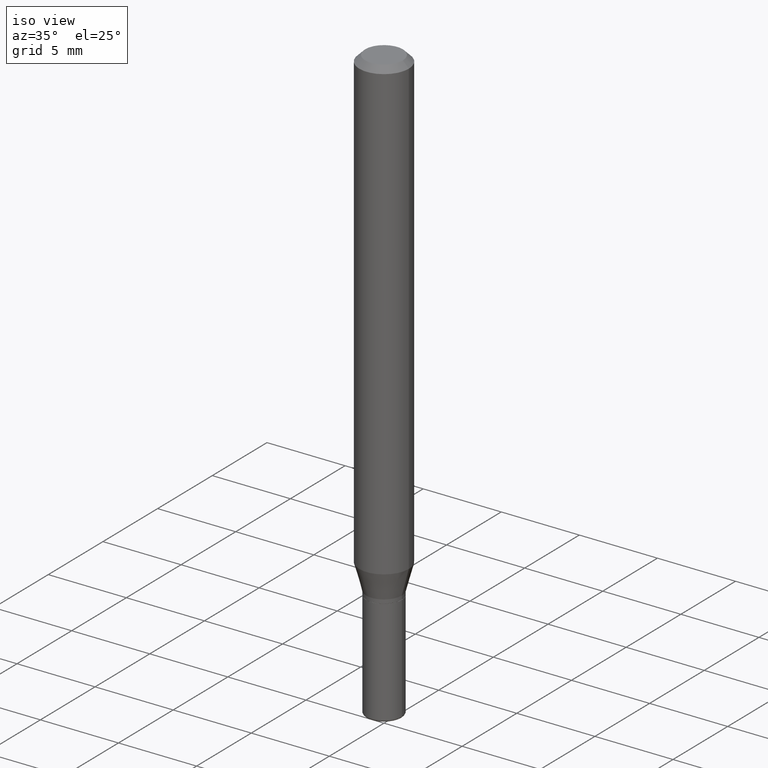
[diagram: clean part render]
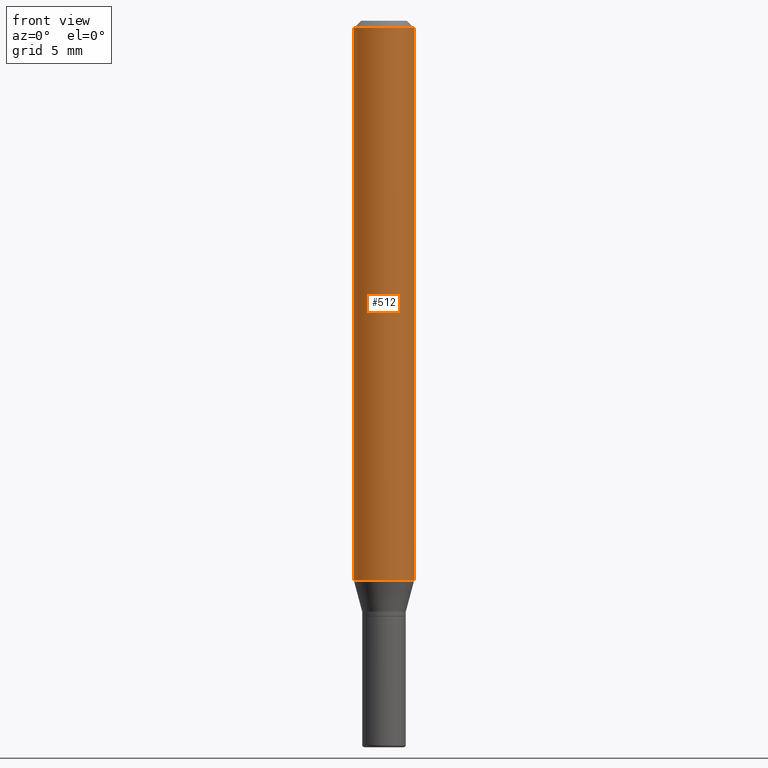
[diagram: tour spotlight — one face highlighted and labeled with its STEP entity id]
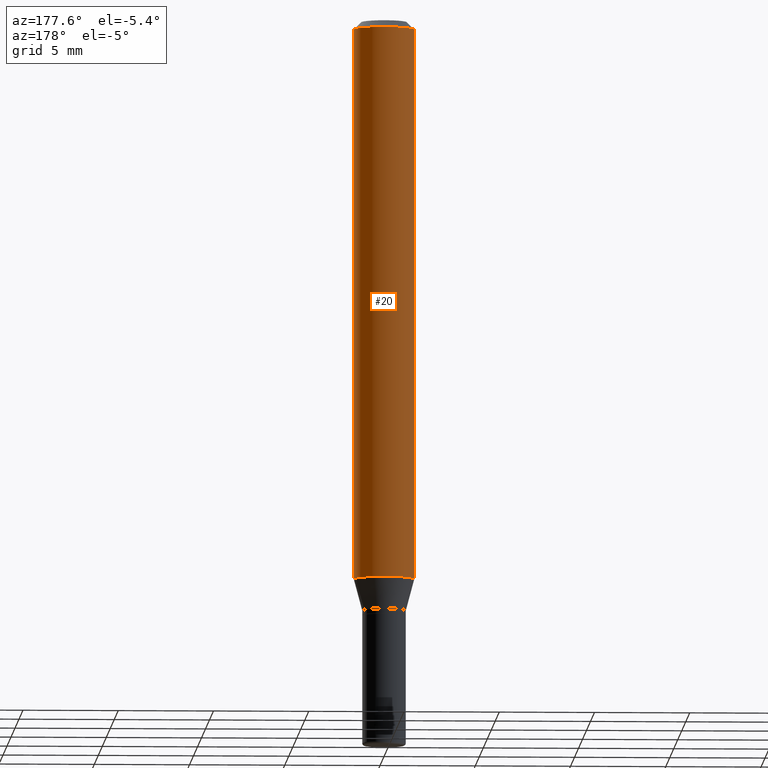
[diagram: tour spotlight — one face highlighted and labeled with its STEP entity id]
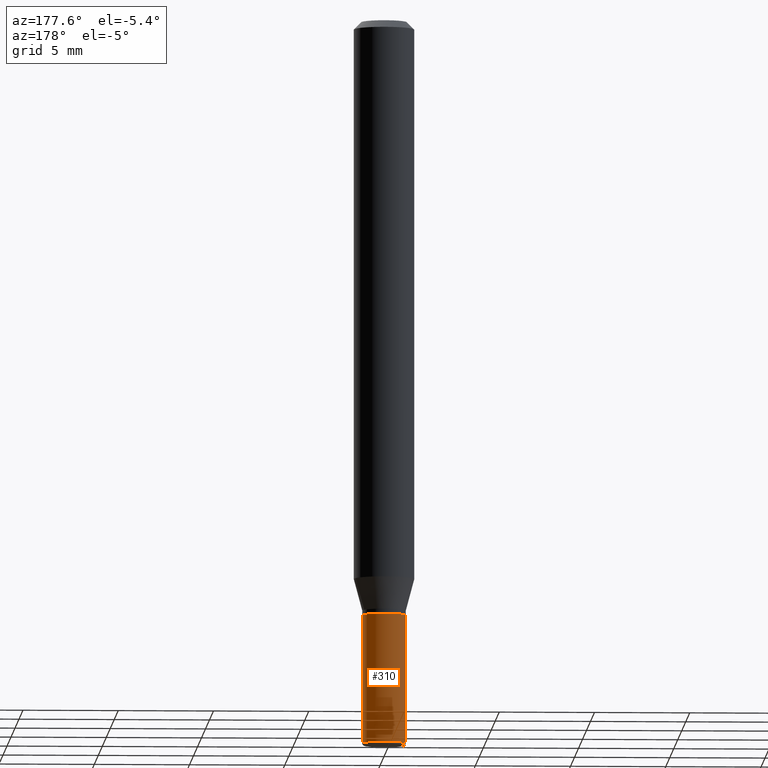
[diagram: tour spotlight — one face highlighted and labeled with its STEP entity id]
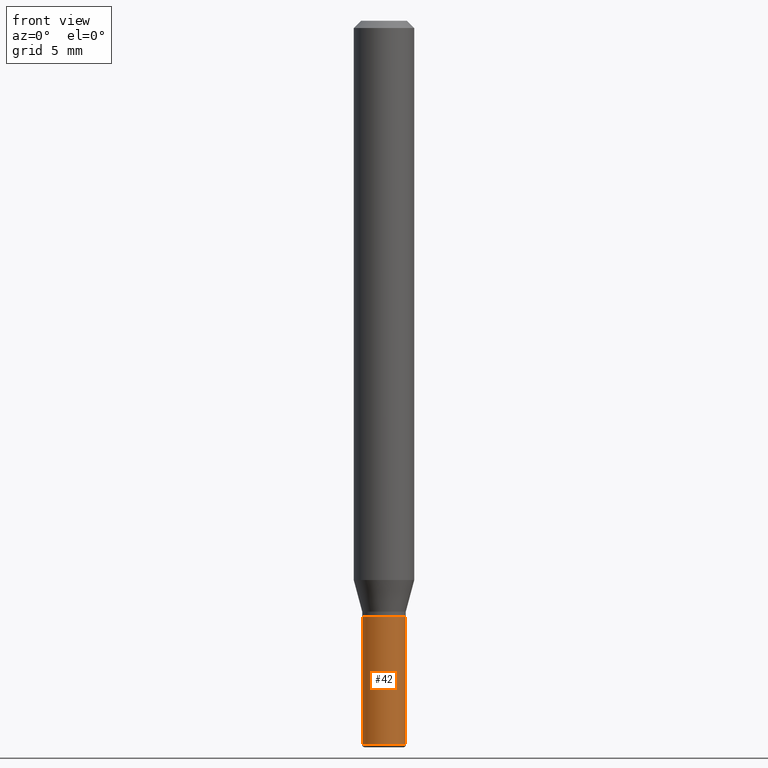
[diagram: tour spotlight — one face highlighted and labeled with its STEP entity id]
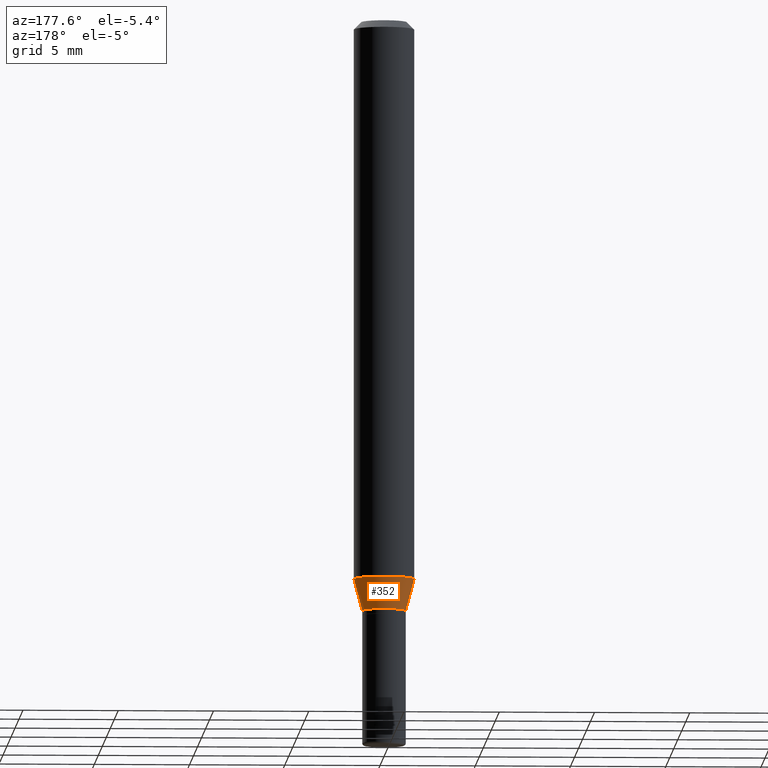
[diagram: tour spotlight — one face highlighted and labeled with its STEP entity id]
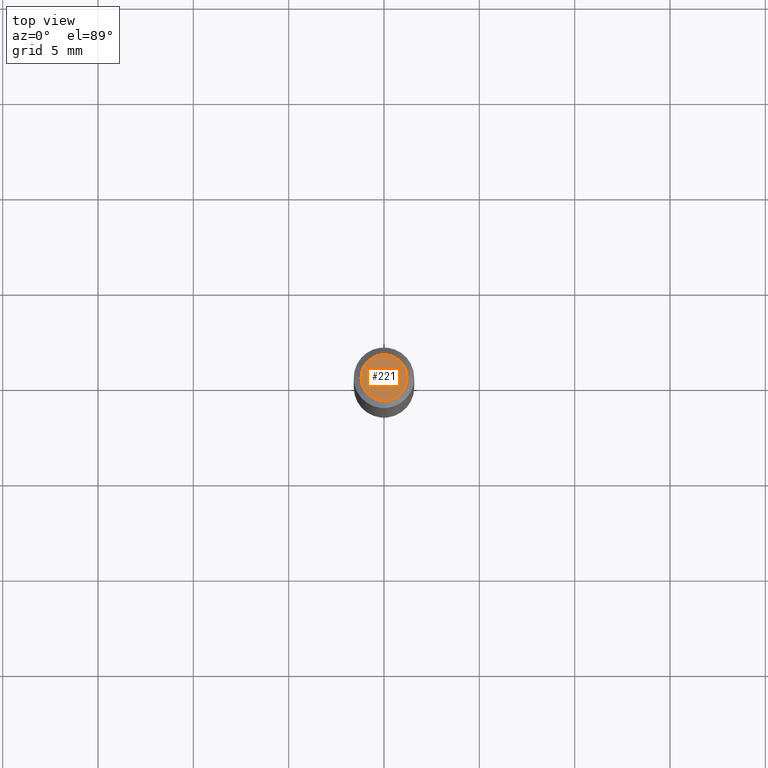
[diagram: tour spotlight — one face highlighted and labeled with its STEP entity id]
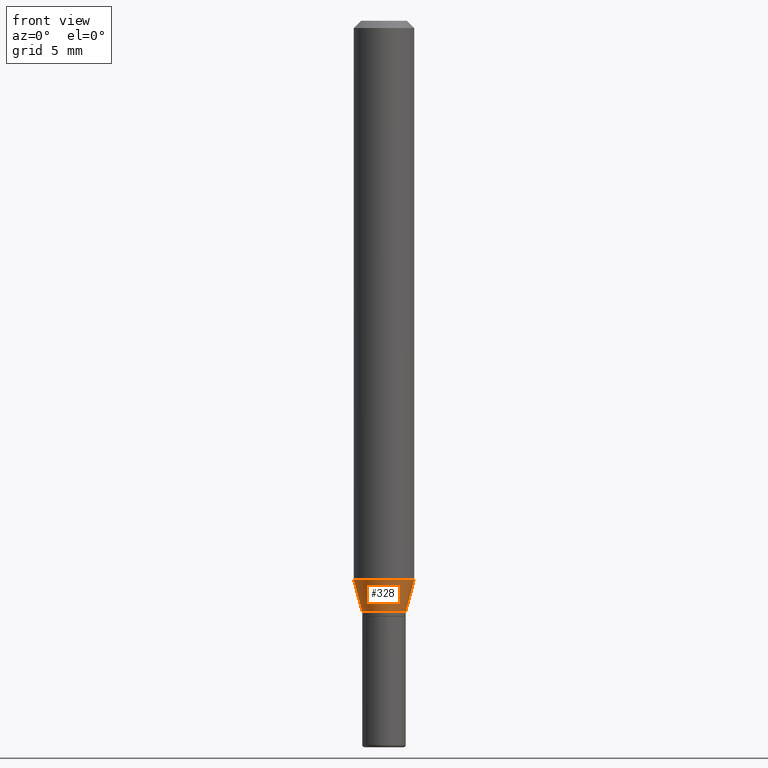
[diagram: tour spotlight — one face highlighted and labeled with its STEP entity id]
A machine part: a face-by-face anatomy tour. The part has 18 B-rep faces; the first image is the clean iso view, then the 7 largest visible faces are spotlighted one at a time (largest first), each with its STEP entity span.

Face 1 — front view, entity #512. In plain terms, the highlighted cylindrical surface (edge-blend (fillet) strip) has radius 1.5875 mm, axis along (-0, 0, 1).
Definition (entity closure, byte-faithful):
#5 = CARTESIAN_POINT ( 'NONE',  ( 0.06250000000000000000, -4.364351673553916694E-16, 3.047610484872459871E-30 ) ) ;
#18 = EDGE_CURVE ( 'NONE', #327, #83, #96, .T. ) ;
#19 = DIRECTION ( 'NONE',  ( 1.000000000000000000, -6.982962677686262766E-15, 0.000000000000000000 ) ) ;
#24 = CARTESIAN_POINT ( 'NONE',  ( 2.823756201468229950E-29, -4.031575482759414101E-15, -1.154689110867544111 ) ) ;
#44 = CARTESIAN_POINT ( 'NONE',  ( 0.06250000000000000000, -4.468010650114805770E-15, -1.154689110867544111 ) ) ;
#49 = AXIS2_PLACEMENT_3D ( 'NONE', #486, #342, #490 ) ;
#81 = VERTEX_POINT ( 'NONE', #324 ) ;
#83 = VERTEX_POINT ( 'NONE', #128 ) ;
#93 = DIRECTION ( 'NONE',  ( 1.000000000000000000, -6.982962677686266711E-15, 0.000000000000000000 ) ) ;
#96 = LINE ( 'NONE', #5, #188 ) ;
#101 = CIRCLE ( 'NONE', #387, 0.06250000000000000000 ) ;
#102 = AXIS2_PLACEMENT_3D ( 'NONE', #454, #442, #93 ) ;
#114 = VERTEX_POINT ( 'NONE', #140 ) ;
#125 = EDGE_CURVE ( 'NONE', #81, #327, #101, .T. ) ;
#128 = CARTESIAN_POINT ( 'NONE',  ( 0.06250000000000000000, -4.888073874380378612E-16, -0.01499999999999970281 ) ) ;
#140 = CARTESIAN_POINT ( 'NONE',  ( -0.06250000000000000000, -1.597884641570967382E-15, -0.01499999999999970281 ) ) ;
#149 = DIRECTION ( 'NONE',  ( -2.445468806185136597E-29, 3.491481338843145583E-15, 1.000000000000000000 ) ) ;
#173 = ORIENTED_EDGE ( 'NONE', *, *, #471, .F. ) ;
#181 = ORIENTED_EDGE ( 'NONE', *, *, #18, .T. ) ;
#184 = VECTOR ( 'NONE', #316, 39.37007874015748143 ) ;
#188 = VECTOR ( 'NONE', #489, 39.37007874015748143 ) ;
#208 = ORIENTED_EDGE ( 'NONE', *, *, #125, .T. ) ;
#263 = EDGE_CURVE ( 'NONE', #81, #114, #350, .T. ) ;
#316 = DIRECTION ( 'NONE',  ( -2.445468806185136877E-29, 3.491481338843145188E-15, 1.000000000000000000 ) ) ;
#324 = CARTESIAN_POINT ( 'NONE',  ( -0.06250000000000000000, -3.587486272909351485E-15, -1.154689110867544111 ) ) ;
#327 = VERTEX_POINT ( 'NONE', #44 ) ;
#329 = CIRCLE ( 'NONE', #102, 0.06250000000000000000 ) ;
#342 = DIRECTION ( 'NONE',  ( -2.445468806185136597E-29, 3.491481338843145583E-15, 1.000000000000000000 ) ) ;
#350 = LINE ( 'NONE', #414, #184 ) ;
#387 = AXIS2_PLACEMENT_3D ( 'NONE', #24, #149, #19 ) ;
#405 = CYLINDRICAL_SURFACE ( 'NONE', #49, 0.06250000000000000000 ) ;
#414 = CARTESIAN_POINT ( 'NONE',  ( -0.06250000000000000000, 4.440892098500626162E-16, -3.074334431409316114E-30 ) ) ;
#442 = DIRECTION ( 'NONE',  ( -2.445468806185136597E-29, 3.491481338843145583E-15, 1.000000000000000000 ) ) ;
#454 = CARTESIAN_POINT ( 'NONE',  ( 3.668203209277632395E-31, -5.237222008264614861E-17, -0.01499999999999970281 ) ) ;
#460 = ORIENTED_EDGE ( 'NONE', *, *, #263, .F. ) ;
#471 = EDGE_CURVE ( 'NONE', #114, #83, #329, .T. ) ;
#481 = EDGE_LOOP ( 'NONE', ( #460, #208, #181, #173 ) ) ;
#486 = CARTESIAN_POINT ( 'NONE',  ( 0.000000000000000000, 0.000000000000000000, 0.000000000000000000 ) ) ;
#489 = DIRECTION ( 'NONE',  ( -2.445468806185136877E-29, 3.491481338843145188E-15, 1.000000000000000000 ) ) ;
#490 = DIRECTION ( 'NONE',  ( 1.000000000000000000, -6.982962677686266711E-15, 4.876176775795935793E-29 ) ) ;
#493 = FACE_OUTER_BOUND ( 'NONE', #481, .T. ) ;
#512 = ADVANCED_FACE ( 'NONE', ( #493 ), #405, .T. ) ;

Face 2 — auxiliary view, entity #20. In plain terms, the highlighted cylindrical surface (edge-blend (fillet) strip) has radius 1.5875 mm, axis along (-0, 0, 1).
Definition (entity closure, byte-faithful):
#5 = CARTESIAN_POINT ( 'NONE',  ( 0.06250000000000000000, -4.364351673553916694E-16, 3.047610484872459871E-30 ) ) ;
#13 = CYLINDRICAL_SURFACE ( 'NONE', #303, 0.06250000000000000000 ) ;
#16 = DIRECTION ( 'NONE',  ( -2.445468806185136597E-29, 3.491481338843145583E-15, 1.000000000000000000 ) ) ;
#18 = EDGE_CURVE ( 'NONE', #327, #83, #96, .T. ) ;
#20 = ADVANCED_FACE ( 'NONE', ( #92 ), #13, .T. ) ;
#43 = DIRECTION ( 'NONE',  ( 1.000000000000000000, -6.982962677686262766E-15, 0.000000000000000000 ) ) ;
#44 = CARTESIAN_POINT ( 'NONE',  ( 0.06250000000000000000, -4.468010650114805770E-15, -1.154689110867544111 ) ) ;
#45 = ORIENTED_EDGE ( 'NONE', *, *, #263, .T. ) ;
#57 = CIRCLE ( 'NONE', #309, 0.06250000000000000000 ) ;
#73 = ORIENTED_EDGE ( 'NONE', *, *, #18, .F. ) ;
#81 = VERTEX_POINT ( 'NONE', #324 ) ;
#83 = VERTEX_POINT ( 'NONE', #128 ) ;
#86 = EDGE_CURVE ( 'NONE', #327, #81, #57, .T. ) ;
#88 = DIRECTION ( 'NONE',  ( -2.445468806185136597E-29, 3.491481338843145583E-15, 1.000000000000000000 ) ) ;
#90 = CARTESIAN_POINT ( 'NONE',  ( 0.000000000000000000, 0.000000000000000000, 0.000000000000000000 ) ) ;
#92 = FACE_OUTER_BOUND ( 'NONE', #154, .T. ) ;
#96 = LINE ( 'NONE', #5, #188 ) ;
#114 = VERTEX_POINT ( 'NONE', #140 ) ;
#128 = CARTESIAN_POINT ( 'NONE',  ( 0.06250000000000000000, -4.888073874380378612E-16, -0.01499999999999970281 ) ) ;
#140 = CARTESIAN_POINT ( 'NONE',  ( -0.06250000000000000000, -1.597884641570967382E-15, -0.01499999999999970281 ) ) ;
#154 = EDGE_LOOP ( 'NONE', ( #277, #45, #424, #73 ) ) ;
#174 = CARTESIAN_POINT ( 'NONE',  ( 3.668203209277632395E-31, -5.237222008264614861E-17, -0.01499999999999970281 ) ) ;
#184 = VECTOR ( 'NONE', #316, 39.37007874015748143 ) ;
#188 = VECTOR ( 'NONE', #489, 39.37007874015748143 ) ;
#263 = EDGE_CURVE ( 'NONE', #81, #114, #350, .T. ) ;
#277 = ORIENTED_EDGE ( 'NONE', *, *, #86, .T. ) ;
#283 = CARTESIAN_POINT ( 'NONE',  ( 2.823756201468229950E-29, -4.031575482759414101E-15, -1.154689110867544111 ) ) ;
#292 = DIRECTION ( 'NONE',  ( 1.000000000000000000, -6.982962677686266711E-15, 4.876176775795935793E-29 ) ) ;
#303 = AXIS2_PLACEMENT_3D ( 'NONE', #90, #16, #292 ) ;
#309 = AXIS2_PLACEMENT_3D ( 'NONE', #283, #88, #43 ) ;
#316 = DIRECTION ( 'NONE',  ( -2.445468806185136877E-29, 3.491481338843145188E-15, 1.000000000000000000 ) ) ;
#324 = CARTESIAN_POINT ( 'NONE',  ( -0.06250000000000000000, -3.587486272909351485E-15, -1.154689110867544111 ) ) ;
#327 = VERTEX_POINT ( 'NONE', #44 ) ;
#332 = DIRECTION ( 'NONE',  ( 1.000000000000000000, -6.982962677686266711E-15, 0.000000000000000000 ) ) ;
#339 = DIRECTION ( 'NONE',  ( -2.445468806185136597E-29, 3.491481338843145583E-15, 1.000000000000000000 ) ) ;
#349 = CIRCLE ( 'NONE', #463, 0.06250000000000000000 ) ;
#350 = LINE ( 'NONE', #414, #184 ) ;
#414 = CARTESIAN_POINT ( 'NONE',  ( -0.06250000000000000000, 4.440892098500626162E-16, -3.074334431409316114E-30 ) ) ;
#424 = ORIENTED_EDGE ( 'NONE', *, *, #499, .F. ) ;
#463 = AXIS2_PLACEMENT_3D ( 'NONE', #174, #339, #332 ) ;
#489 = DIRECTION ( 'NONE',  ( -2.445468806185136877E-29, 3.491481338843145188E-15, 1.000000000000000000 ) ) ;
#499 = EDGE_CURVE ( 'NONE', #83, #114, #349, .T. ) ;

Face 3 — auxiliary view, entity #310. In plain terms, the highlighted cylindrical surface (edge-blend (fillet) strip) has radius 1.143 mm, axis along (-0, 0, 1).
Definition (entity closure, byte-faithful):
#12 = AXIS2_PLACEMENT_3D ( 'NONE', #351, #67, #337 ) ;
#15 = CARTESIAN_POINT ( 'NONE',  ( 0.04499999999999990119, -5.533997922066385616E-15, -1.495000000000000329 ) ) ;
#50 = DIRECTION ( 'NONE',  ( -2.445468806185136877E-29, 3.491481338843145188E-15, 1.000000000000000000 ) ) ;
#67 = DIRECTION ( 'NONE',  ( -2.445468806185136597E-29, 3.491481338843145583E-15, 1.000000000000000000 ) ) ;
#89 = FACE_OUTER_BOUND ( 'NONE', #518, .T. ) ;
#95 = VECTOR ( 'NONE', #380, 39.37007874015748143 ) ;
#115 = ORIENTED_EDGE ( 'NONE', *, *, #364, .T. ) ;
#131 = DIRECTION ( 'NONE',  ( -2.445468806185136597E-29, 3.491481338843145583E-15, 1.000000000000000000 ) ) ;
#134 = CARTESIAN_POINT ( 'NONE',  ( 0.000000000000000000, 0.000000000000000000, 0.000000000000000000 ) ) ;
#139 = CIRCLE ( 'NONE', #12, 0.04499999999999999833 ) ;
#145 = LINE ( 'NONE', #267, #95 ) ;
#158 = EDGE_CURVE ( 'NONE', #365, #390, #177, .T. ) ;
#162 = CARTESIAN_POINT ( 'NONE',  ( -0.04499999999999990119, -4.437399093081741973E-15, -1.495000000000000329 ) ) ;
#170 = EDGE_CURVE ( 'NONE', #365, #418, #145, .T. ) ;
#175 = CARTESIAN_POINT ( 'NONE',  ( 3.655975865246779683E-29, -5.219764601570503930E-15, -1.495000000000000329 ) ) ;
#177 = CIRCLE ( 'NONE', #395, 0.04499999999999990119 ) ;
#205 = DIRECTION ( 'NONE',  ( 1.000000000000000000, -6.982962677686266711E-15, 4.876176775795934672E-29 ) ) ;
#223 = AXIS2_PLACEMENT_3D ( 'NONE', #134, #131, #205 ) ;
#227 = DIRECTION ( 'NONE',  ( -2.445468806185136597E-29, 3.491481338843145583E-15, 1.000000000000000000 ) ) ;
#236 = VECTOR ( 'NONE', #50, 39.37007874015748143 ) ;
#238 = ORIENTED_EDGE ( 'NONE', *, *, #435, .F. ) ;
#267 = CARTESIAN_POINT ( 'NONE',  ( 0.04499999999999994976, -3.142333204958816371E-16, 2.194279549108168164E-30 ) ) ;
#288 = CARTESIAN_POINT ( 'NONE',  ( -0.04499999999999994976, 3.197442310920447267E-16, -2.213520790614704757E-30 ) ) ;
#310 = ADVANCED_FACE ( 'NONE', ( #89 ), #363, .T. ) ;
#337 = DIRECTION ( 'NONE',  ( 1.000000000000000000, -6.982962677686269077E-15, 0.000000000000000000 ) ) ;
#340 = DIRECTION ( 'NONE',  ( 1.000000000000000000, -6.982962677686261977E-15, 0.000000000000000000 ) ) ;
#351 = CARTESIAN_POINT ( 'NONE',  ( 3.007926631607718216E-29, -4.294522046777069173E-15, -1.230000000000000204 ) ) ;
#358 = ORIENTED_EDGE ( 'NONE', *, *, #170, .F. ) ;
#363 = CYLINDRICAL_SURFACE ( 'NONE', #223, 0.04499999999999994976 ) ;
#364 = EDGE_CURVE ( 'NONE', #390, #517, #398, .T. ) ;
#365 = VERTEX_POINT ( 'NONE', #15 ) ;
#380 = DIRECTION ( 'NONE',  ( -2.445468806185136877E-29, 3.491481338843145188E-15, 1.000000000000000000 ) ) ;
#390 = VERTEX_POINT ( 'NONE', #162 ) ;
#395 = AXIS2_PLACEMENT_3D ( 'NONE', #175, #227, #340 ) ;
#398 = LINE ( 'NONE', #288, #236 ) ;
#418 = VERTEX_POINT ( 'NONE', #422 ) ;
#422 = CARTESIAN_POINT ( 'NONE',  ( 0.04499999999999999833, -4.608755367272951648E-15, -1.230000000000000204 ) ) ;
#435 = EDGE_CURVE ( 'NONE', #418, #517, #139, .T. ) ;
#445 = CARTESIAN_POINT ( 'NONE',  ( -0.04499999999999999833, -4.437399093081741973E-15, -1.230000000000000204 ) ) ;
#453 = ORIENTED_EDGE ( 'NONE', *, *, #158, .T. ) ;
#517 = VERTEX_POINT ( 'NONE', #445 ) ;
#518 = EDGE_LOOP ( 'NONE', ( #453, #115, #238, #358 ) ) ;

Face 4 — front view, entity #42. In plain terms, the highlighted cylindrical surface (edge-blend (fillet) strip) has radius 1.143 mm, axis along (-0, 0, 1).
Definition (entity closure, byte-faithful):
#15 = CARTESIAN_POINT ( 'NONE',  ( 0.04499999999999990119, -5.533997922066385616E-15, -1.495000000000000329 ) ) ;
#42 = ADVANCED_FACE ( 'NONE', ( #256 ), #335, .T. ) ;
#47 = AXIS2_PLACEMENT_3D ( 'NONE', #182, #466, #59 ) ;
#50 = DIRECTION ( 'NONE',  ( -2.445468806185136877E-29, 3.491481338843145188E-15, 1.000000000000000000 ) ) ;
#59 = DIRECTION ( 'NONE',  ( 1.000000000000000000, -6.982962677686261977E-15, 0.000000000000000000 ) ) ;
#61 = DIRECTION ( 'NONE',  ( 1.000000000000000000, -6.982962677686269077E-15, 0.000000000000000000 ) ) ;
#66 = ORIENTED_EDGE ( 'NONE', *, *, #151, .T. ) ;
#75 = AXIS2_PLACEMENT_3D ( 'NONE', #252, #494, #449 ) ;
#95 = VECTOR ( 'NONE', #380, 39.37007874015748143 ) ;
#110 = AXIS2_PLACEMENT_3D ( 'NONE', #301, #419, #61 ) ;
#145 = LINE ( 'NONE', #267, #95 ) ;
#151 = EDGE_CURVE ( 'NONE', #390, #365, #461, .T. ) ;
#162 = CARTESIAN_POINT ( 'NONE',  ( -0.04499999999999990119, -4.437399093081741973E-15, -1.495000000000000329 ) ) ;
#170 = EDGE_CURVE ( 'NONE', #365, #418, #145, .T. ) ;
#182 = CARTESIAN_POINT ( 'NONE',  ( 3.655975865246779683E-29, -5.219764601570503930E-15, -1.495000000000000329 ) ) ;
#196 = EDGE_CURVE ( 'NONE', #517, #418, #201, .T. ) ;
#201 = CIRCLE ( 'NONE', #110, 0.04499999999999999833 ) ;
#236 = VECTOR ( 'NONE', #50, 39.37007874015748143 ) ;
#245 = ORIENTED_EDGE ( 'NONE', *, *, #196, .F. ) ;
#252 = CARTESIAN_POINT ( 'NONE',  ( 0.000000000000000000, 0.000000000000000000, 0.000000000000000000 ) ) ;
#256 = FACE_OUTER_BOUND ( 'NONE', #433, .T. ) ;
#267 = CARTESIAN_POINT ( 'NONE',  ( 0.04499999999999994976, -3.142333204958816371E-16, 2.194279549108168164E-30 ) ) ;
#288 = CARTESIAN_POINT ( 'NONE',  ( -0.04499999999999994976, 3.197442310920447267E-16, -2.213520790614704757E-30 ) ) ;
#301 = CARTESIAN_POINT ( 'NONE',  ( 3.007926631607718216E-29, -4.294522046777069173E-15, -1.230000000000000204 ) ) ;
#335 = CYLINDRICAL_SURFACE ( 'NONE', #75, 0.04499999999999994976 ) ;
#345 = ORIENTED_EDGE ( 'NONE', *, *, #364, .F. ) ;
#364 = EDGE_CURVE ( 'NONE', #390, #517, #398, .T. ) ;
#365 = VERTEX_POINT ( 'NONE', #15 ) ;
#380 = DIRECTION ( 'NONE',  ( -2.445468806185136877E-29, 3.491481338843145188E-15, 1.000000000000000000 ) ) ;
#390 = VERTEX_POINT ( 'NONE', #162 ) ;
#398 = LINE ( 'NONE', #288, #236 ) ;
#418 = VERTEX_POINT ( 'NONE', #422 ) ;
#419 = DIRECTION ( 'NONE',  ( -2.445468806185136597E-29, 3.491481338843145583E-15, 1.000000000000000000 ) ) ;
#422 = CARTESIAN_POINT ( 'NONE',  ( 0.04499999999999999833, -4.608755367272951648E-15, -1.230000000000000204 ) ) ;
#433 = EDGE_LOOP ( 'NONE', ( #345, #66, #515, #245 ) ) ;
#445 = CARTESIAN_POINT ( 'NONE',  ( -0.04499999999999999833, -4.437399093081741973E-15, -1.230000000000000204 ) ) ;
#449 = DIRECTION ( 'NONE',  ( 1.000000000000000000, -6.982962677686266711E-15, 4.876176775795934672E-29 ) ) ;
#461 = CIRCLE ( 'NONE', #47, 0.04499999999999990119 ) ;
#466 = DIRECTION ( 'NONE',  ( -2.445468806185136597E-29, 3.491481338843145583E-15, 1.000000000000000000 ) ) ;
#494 = DIRECTION ( 'NONE',  ( -2.445468806185136597E-29, 3.491481338843145583E-15, 1.000000000000000000 ) ) ;
#515 = ORIENTED_EDGE ( 'NONE', *, *, #170, .T. ) ;
#517 = VERTEX_POINT ( 'NONE', #445 ) ;

Face 5 — auxiliary view, entity #352. In plain terms, the highlighted conical surface has half-angle 15 deg.
Definition (entity closure, byte-faithful):
#30 = EDGE_CURVE ( 'NONE', #294, #327, #338, .T. ) ;
#36 = ORIENTED_EDGE ( 'NONE', *, *, #86, .F. ) ;
#41 = CARTESIAN_POINT ( 'NONE',  ( 0.04499999999999992895, -4.573840553884517633E-15, -1.219999999999999751 ) ) ;
#43 = DIRECTION ( 'NONE',  ( 1.000000000000000000, -6.982962677686262766E-15, 0.000000000000000000 ) ) ;
#44 = CARTESIAN_POINT ( 'NONE',  ( 0.06250000000000000000, -4.468010650114805770E-15, -1.154689110867544111 ) ) ;
#57 = CIRCLE ( 'NONE', #309, 0.06250000000000000000 ) ;
#70 = DIRECTION ( 'NONE',  ( 1.000000000000000000, -6.982962677686257244E-15, 0.000000000000000000 ) ) ;
#74 = DIRECTION ( 'NONE',  ( -2.445468806185136597E-29, 3.491481338843145583E-15, 1.000000000000000000 ) ) ;
#81 = VERTEX_POINT ( 'NONE', #324 ) ;
#86 = EDGE_CURVE ( 'NONE', #327, #81, #57, .T. ) ;
#88 = DIRECTION ( 'NONE',  ( -2.445468806185136597E-29, 3.491481338843145583E-15, 1.000000000000000000 ) ) ;
#119 = CONICAL_SURFACE ( 'NONE', #479, 0.04499999999999992895, 0.2617993877991492968 ) ;
#160 = EDGE_CURVE ( 'NONE', #321, #81, #462, .T. ) ;
#176 = AXIS2_PLACEMENT_3D ( 'NONE', #467, #74, #70 ) ;
#207 = DIRECTION ( 'NONE',  ( -2.445468806185136597E-29, 3.491481338843145583E-15, 1.000000000000000000 ) ) ;
#214 = ORIENTED_EDGE ( 'NONE', *, *, #30, .F. ) ;
#222 = VECTOR ( 'NONE', #441, 39.37007874015748854 ) ;
#237 = CARTESIAN_POINT ( 'NONE',  ( 0.04499999999999992895, -4.573840553884517633E-15, -1.219999999999999751 ) ) ;
#251 = CARTESIAN_POINT ( 'NONE',  ( 2.983471943545866110E-29, -4.259607233388636735E-15, -1.219999999999999751 ) ) ;
#272 = ORIENTED_EDGE ( 'NONE', *, *, #160, .T. ) ;
#274 = ORIENTED_EDGE ( 'NONE', *, *, #295, .T. ) ;
#282 = CIRCLE ( 'NONE', #176, 0.04499999999999992895 ) ;
#283 = CARTESIAN_POINT ( 'NONE',  ( 2.823756201468229950E-29, -4.031575482759414101E-15, -1.154689110867544111 ) ) ;
#291 = CARTESIAN_POINT ( 'NONE',  ( -0.04499999999999992895, -3.763674637602971820E-15, -1.219999999999999751 ) ) ;
#294 = VERTEX_POINT ( 'NONE', #237 ) ;
#295 = EDGE_CURVE ( 'NONE', #294, #321, #282, .T. ) ;
#309 = AXIS2_PLACEMENT_3D ( 'NONE', #283, #88, #43 ) ;
#321 = VERTEX_POINT ( 'NONE', #291 ) ;
#324 = CARTESIAN_POINT ( 'NONE',  ( -0.06250000000000000000, -3.587486272909351485E-15, -1.154689110867544111 ) ) ;
#327 = VERTEX_POINT ( 'NONE', #44 ) ;
#334 = DIRECTION ( 'NONE',  ( 1.000000000000000000, -6.982962677686257244E-15, 0.000000000000000000 ) ) ;
#338 = LINE ( 'NONE', #41, #222 ) ;
#346 = CARTESIAN_POINT ( 'NONE',  ( -0.04499999999999992895, -3.939863002296592156E-15, -1.219999999999999751 ) ) ;
#352 = ADVANCED_FACE ( 'NONE', ( #448 ), #119, .T. ) ;
#441 = DIRECTION ( 'NONE',  ( 0.2588190451025205729, 1.565188264969627490E-15, 0.9659258262890682012 ) ) ;
#448 = FACE_OUTER_BOUND ( 'NONE', #477, .T. ) ;
#452 = VECTOR ( 'NONE', #503, 39.37007874015748854 ) ;
#462 = LINE ( 'NONE', #346, #452 ) ;
#467 = CARTESIAN_POINT ( 'NONE',  ( 2.983471943545866110E-29, -4.259607233388636735E-15, -1.219999999999999751 ) ) ;
#477 = EDGE_LOOP ( 'NONE', ( #274, #272, #36, #214 ) ) ;
#479 = AXIS2_PLACEMENT_3D ( 'NONE', #251, #207, #334 ) ;
#503 = DIRECTION ( 'NONE',  ( -0.2588190451025205729, 5.211531920934544731E-15, 0.9659258262890682012 ) ) ;

Face 6 — top view, entity #221. In plain terms, the highlighted planar face has unit normal (0, -0, -1).
Definition (entity closure, byte-faithful):
#23 = DIRECTION ( 'NONE',  ( -2.445468806185136597E-29, 3.491481338843145583E-15, 1.000000000000000000 ) ) ;
#25 = DIRECTION ( 'NONE',  ( -2.445468806185136597E-29, 3.491481338843145583E-15, 1.000000000000000000 ) ) ;
#64 = AXIS2_PLACEMENT_3D ( 'NONE', #265, #25, #183 ) ;
#80 = ORIENTED_EDGE ( 'NONE', *, *, #198, .T. ) ;
#105 = CARTESIAN_POINT ( 'NONE',  ( -6.680649051745406845E-45, 9.538196290434862081E-31, 2.731847993664263218E-16 ) ) ;
#129 = AXIS2_PLACEMENT_3D ( 'NONE', #229, #411, #220 ) ;
#157 = CARTESIAN_POINT ( 'NONE',  ( 0.04750000000000000749, -4.035134999187568762E-16, 2.731847993664288856E-16 ) ) ;
#183 = DIRECTION ( 'NONE',  ( 1.000000000000000000, -6.982962677686266711E-15, 4.852736867747365086E-29 ) ) ;
#198 = EDGE_CURVE ( 'NONE', #394, #369, #431, .T. ) ;
#217 = DIRECTION ( 'NONE',  ( 1.000000000000000000, -6.982962677686266711E-15, 4.852736867747365086E-29 ) ) ;
#220 = DIRECTION ( 'NONE',  ( -1.000000000000000000, 6.982962677686265922E-15, -4.876176775795935793E-29 ) ) ;
#221 = ADVANCED_FACE ( 'NONE', ( #465 ), #375, .F. ) ;
#229 = CARTESIAN_POINT ( 'NONE',  ( 3.316907271900976589E-16, 0.04750000000000000749, -2.925296391183627249E-17 ) ) ;
#233 = EDGE_CURVE ( 'NONE', #369, #394, #438, .T. ) ;
#265 = CARTESIAN_POINT ( 'NONE',  ( -6.680649051745406845E-45, 9.538196290434862081E-31, 2.731847993664263218E-16 ) ) ;
#359 = AXIS2_PLACEMENT_3D ( 'NONE', #105, #23, #217 ) ;
#369 = VERTEX_POINT ( 'NONE', #480 ) ;
#375 = PLANE ( 'NONE',  #129 ) ;
#394 = VERTEX_POINT ( 'NONE', #157 ) ;
#404 = EDGE_LOOP ( 'NONE', ( #485, #80 ) ) ;
#411 = DIRECTION ( 'NONE',  ( 2.438088387897960049E-29, -3.491481338843145188E-15, -1.000000000000000000 ) ) ;
#431 = CIRCLE ( 'NONE', #64, 0.04750000000000000749 ) ;
#438 = CIRCLE ( 'NONE', #359, 0.04750000000000000749 ) ;
#465 = FACE_OUTER_BOUND ( 'NONE', #404, .T. ) ;
#480 = CARTESIAN_POINT ( 'NONE',  ( -0.04750000000000000749, 3.578768372314221353E-16, 2.731847993664239060E-16 ) ) ;
#485 = ORIENTED_EDGE ( 'NONE', *, *, #233, .T. ) ;

Face 7 — front view, entity #328. In plain terms, the highlighted conical surface has half-angle 15 deg.
Definition (entity closure, byte-faithful):
#19 = DIRECTION ( 'NONE',  ( 1.000000000000000000, -6.982962677686262766E-15, 0.000000000000000000 ) ) ;
#24 = CARTESIAN_POINT ( 'NONE',  ( 2.823756201468229950E-29, -4.031575482759414101E-15, -1.154689110867544111 ) ) ;
#30 = EDGE_CURVE ( 'NONE', #294, #327, #338, .T. ) ;
#35 = ORIENTED_EDGE ( 'NONE', *, *, #30, .T. ) ;
#41 = CARTESIAN_POINT ( 'NONE',  ( 0.04499999999999992895, -4.573840553884517633E-15, -1.219999999999999751 ) ) ;
#44 = CARTESIAN_POINT ( 'NONE',  ( 0.06250000000000000000, -4.468010650114805770E-15, -1.154689110867544111 ) ) ;
#81 = VERTEX_POINT ( 'NONE', #324 ) ;
#101 = CIRCLE ( 'NONE', #387, 0.06250000000000000000 ) ;
#107 = EDGE_CURVE ( 'NONE', #321, #294, #368, .T. ) ;
#118 = ORIENTED_EDGE ( 'NONE', *, *, #107, .T. ) ;
#125 = EDGE_CURVE ( 'NONE', #81, #327, #101, .T. ) ;
#149 = DIRECTION ( 'NONE',  ( -2.445468806185136597E-29, 3.491481338843145583E-15, 1.000000000000000000 ) ) ;
#160 = EDGE_CURVE ( 'NONE', #321, #81, #462, .T. ) ;
#197 = DIRECTION ( 'NONE',  ( -2.445468806185136597E-29, 3.491481338843145583E-15, 1.000000000000000000 ) ) ;
#200 = ORIENTED_EDGE ( 'NONE', *, *, #160, .F. ) ;
#206 = CARTESIAN_POINT ( 'NONE',  ( 2.983471943545866110E-29, -4.259607233388636735E-15, -1.219999999999999751 ) ) ;
#213 = FACE_OUTER_BOUND ( 'NONE', #315, .T. ) ;
#222 = VECTOR ( 'NONE', #441, 39.37007874015748854 ) ;
#237 = CARTESIAN_POINT ( 'NONE',  ( 0.04499999999999992895, -4.573840553884517633E-15, -1.219999999999999751 ) ) ;
#242 = CARTESIAN_POINT ( 'NONE',  ( 2.983471943545866110E-29, -4.259607233388636735E-15, -1.219999999999999751 ) ) ;
#270 = ORIENTED_EDGE ( 'NONE', *, *, #125, .F. ) ;
#289 = DIRECTION ( 'NONE',  ( -2.445468806185136597E-29, 3.491481338843145583E-15, 1.000000000000000000 ) ) ;
#291 = CARTESIAN_POINT ( 'NONE',  ( -0.04499999999999992895, -3.763674637602971820E-15, -1.219999999999999751 ) ) ;
#294 = VERTEX_POINT ( 'NONE', #237 ) ;
#315 = EDGE_LOOP ( 'NONE', ( #200, #118, #35, #270 ) ) ;
#321 = VERTEX_POINT ( 'NONE', #291 ) ;
#324 = CARTESIAN_POINT ( 'NONE',  ( -0.06250000000000000000, -3.587486272909351485E-15, -1.154689110867544111 ) ) ;
#327 = VERTEX_POINT ( 'NONE', #44 ) ;
#328 = ADVANCED_FACE ( 'NONE', ( #213 ), #507, .T. ) ;
#338 = LINE ( 'NONE', #41, #222 ) ;
#346 = CARTESIAN_POINT ( 'NONE',  ( -0.04499999999999992895, -3.939863002296592156E-15, -1.219999999999999751 ) ) ;
#368 = CIRCLE ( 'NONE', #487, 0.04499999999999992895 ) ;
#387 = AXIS2_PLACEMENT_3D ( 'NONE', #24, #149, #19 ) ;
#441 = DIRECTION ( 'NONE',  ( 0.2588190451025205729, 1.565188264969627490E-15, 0.9659258262890682012 ) ) ;
#444 = DIRECTION ( 'NONE',  ( 1.000000000000000000, -6.982962677686257244E-15, 0.000000000000000000 ) ) ;
#452 = VECTOR ( 'NONE', #503, 39.37007874015748854 ) ;
#462 = LINE ( 'NONE', #346, #452 ) ;
#487 = AXIS2_PLACEMENT_3D ( 'NONE', #206, #289, #444 ) ;
#491 = DIRECTION ( 'NONE',  ( 1.000000000000000000, -6.982962677686257244E-15, 0.000000000000000000 ) ) ;
#496 = AXIS2_PLACEMENT_3D ( 'NONE', #242, #197, #491 ) ;
#503 = DIRECTION ( 'NONE',  ( -0.2588190451025205729, 5.211531920934544731E-15, 0.9659258262890682012 ) ) ;
#507 = CONICAL_SURFACE ( 'NONE', #496, 0.04499999999999992895, 0.2617993877991492968 ) ;